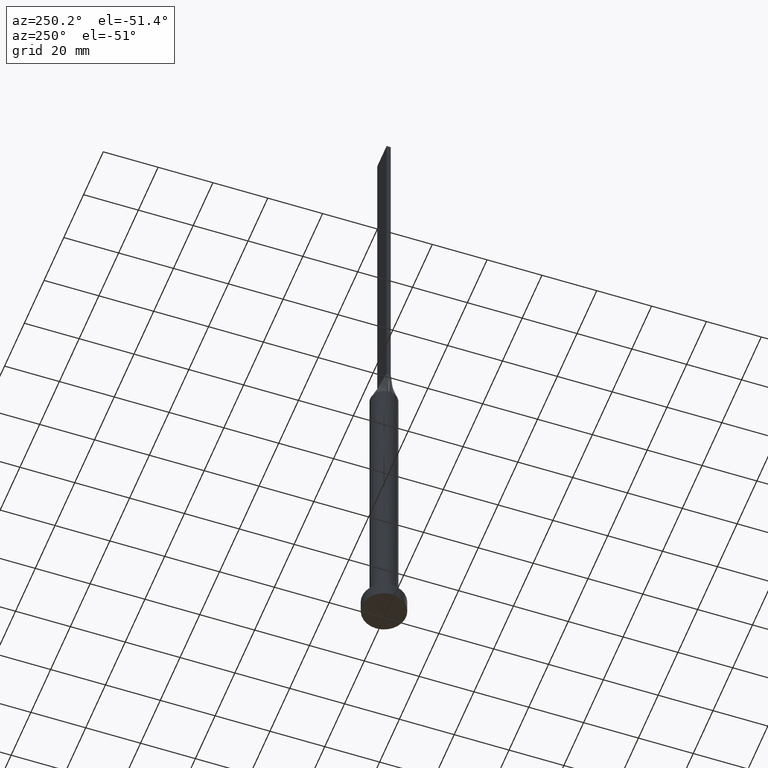
[diagram: clean part render]
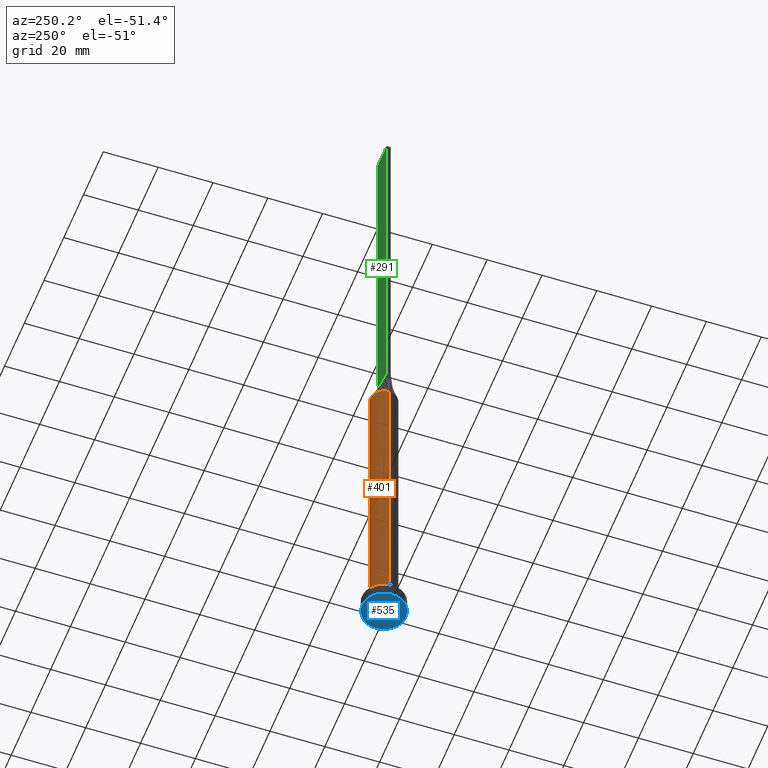
[diagram: same view with three faces highlighted in distinct colors, each labeled with its STEP entity id]
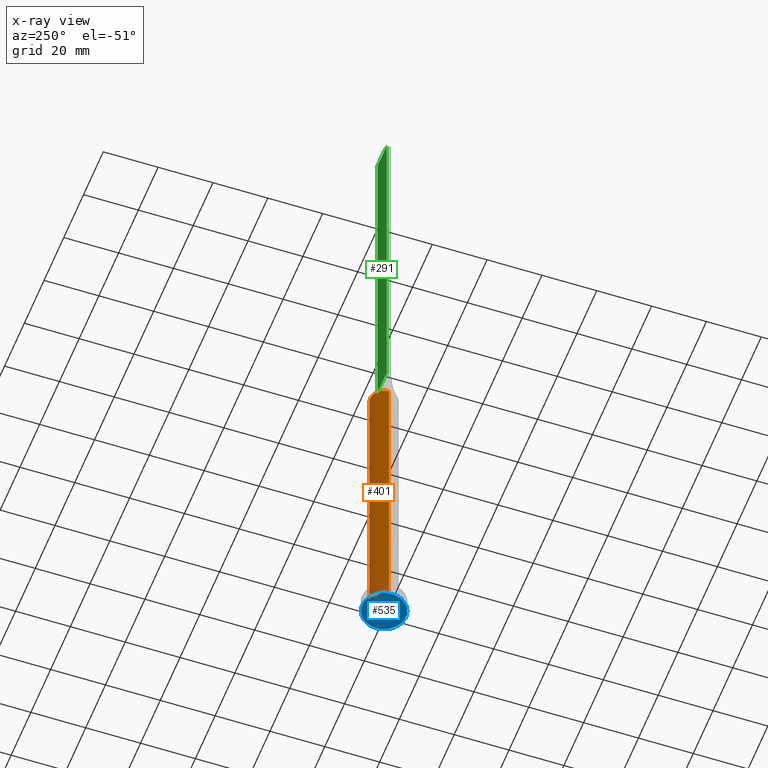
[diagram: x-ray of the same camera — body ghosted, the three highlighted faces saturated]
A machine part, auxiliary view with three faces highlighted in distinct colors.
The next image is the same camera in x-ray (body ghosted, the three faces saturated) — at least one of them is partly hidden behind the body in this view.
Their STEP definitions:

[orange] entity #401 — the highlighted cylindrical surface (edge-blend (fillet) strip) has radius 5 mm, axis along (-0, -0, -1).
#2 = LINE ( 'NONE', #451, #165 ) ;
#3 = CARTESIAN_POINT ( 'NONE',  ( -5.000000000000000000, 0.000000000000000000, 115.0000000000000000 ) ) ;
#4 = CARTESIAN_POINT ( 'NONE',  ( 5.000000000000000000, 6.123233995736766282E-16, 5.000000000000000000 ) ) ;
#7 = ORIENTED_EDGE ( 'NONE', *, *, #380, .F. ) ;
#16 = DIRECTION ( 'NONE',  ( -0.000000000000000000, -0.000000000000000000, -1.000000000000000000 ) ) ;
#24 = CIRCLE ( 'NONE', #135, 5.000000000000000000 ) ;
#32 = VERTEX_POINT ( 'NONE', #182 ) ;
#42 = EDGE_LOOP ( 'NONE', ( #419, #236, #435, #7, #238, #52 ) ) ;
#48 = FACE_OUTER_BOUND ( 'NONE', #42, .T. ) ;
#52 = ORIENTED_EDGE ( 'NONE', *, *, #576, .F. ) ;
#53 = CARTESIAN_POINT ( 'NONE',  ( 4.938814826645345768, 0.7798128673650538412, 115.0000000000000000 ) ) ;
#55 = CARTESIAN_POINT ( 'NONE',  ( 2.353781608410062454, 4.424438117685770777, 115.0000000000000000 ) ) ;
#57 = DIRECTION ( 'NONE',  ( -1.000000000000000000, 0.000000000000000000, 0.000000000000000000 ) ) ;
#64 = DIRECTION ( 'NONE',  ( 1.000000000000000000, 0.000000000000000000, 0.000000000000000000 ) ) ;
#74 = CARTESIAN_POINT ( 'NONE',  ( -4.029217956433124748, 3.021257902548482033, 115.0000000000000000 ) ) ;
#75 = CARTESIAN_POINT ( 'NONE',  ( -4.332026455536841070, 2.547220758687717801, 115.0000000000000000 ) ) ;
#88 = CIRCLE ( 'NONE', #571, 5.000000000000000000 ) ;
#91 = CARTESIAN_POINT ( 'NONE',  ( -5.000000000000000000, 0.000000000000000000, 5.000000000000000000 ) ) ;
#112 = CARTESIAN_POINT ( 'NONE',  ( 0.000000000000000000, 0.000000000000000000, 115.0000000000000000 ) ) ;
#114 = CARTESIAN_POINT ( 'NONE',  ( -3.404830936252120299, 3.673931880027067720, 115.0000000000000142 ) ) ;
#118 = VERTEX_POINT ( 'NONE', #392 ) ;
#134 = VERTEX_POINT ( 'NONE', #91 ) ;
#135 = AXIS2_PLACEMENT_3D ( 'NONE', #112, #466, #581 ) ;
#153 = CARTESIAN_POINT ( 'NONE',  ( 0.7119876437238013001, 4.961551549233180758, 115.0000000000000426 ) ) ;
#157 = VERTEX_POINT ( 'NONE', #4 ) ;
#158 = CARTESIAN_POINT ( 'NONE',  ( 4.332026455536839293, 2.547220758687718689, 115.0000000000000142 ) ) ;
#165 = VECTOR ( 'NONE', #479, 1000.000000000000000 ) ;
#173 = CARTESIAN_POINT ( 'NONE',  ( -4.753727492665067444, 1.629988260829202007, 115.0000000000000426 ) ) ;
#182 = CARTESIAN_POINT ( 'NONE',  ( -4.999812818728077701, -1.193032336741890821E-15, 115.0000000000000000 ) ) ;
#191 = VECTOR ( 'NONE', #16, 1000.000000000000000 ) ;
#197 = B_SPLINE_CURVE_WITH_KNOTS ( 'NONE', 3,
 ( #577, #590, #394, #158, #354, #347, #498, #537, #55, #206, #587, #153, #350, #543, #272, #225, #363, #424, #517, #371, #114, #74, #75, #173, #322, #275 ),
 .UNSPECIFIED., .F., .F.,
 ( 4, 2, 2, 2, 2, 2, 2, 2, 2, 2, 2, 2, 4 ),
 ( 0.000000000000000000, 0.1250000000000001388, 0.2500000000000002220, 0.3125000000000002776, 0.3750000000000002776, 0.4375000000000002776, 0.5000000000000002220, 0.5625000000000002220, 0.6250000000000001110, 0.6875000000000001110, 0.7500000000000001110, 0.8750000000000001110, 1.000000000000000000 ),
 .UNSPECIFIED. ) ;
#206 = CARTESIAN_POINT ( 'NONE',  ( 1.732223102076450250, 4.702695359254404295, 114.9999999999999716 ) ) ;
#210 = CYLINDRICAL_SURFACE ( 'NONE', #480, 5.000000000000000000 ) ;
#225 = CARTESIAN_POINT ( 'NONE',  ( -1.400150253878312823, 4.812847332616943419, 115.0000000000000000 ) ) ;
#236 = ORIENTED_EDGE ( 'NONE', *, *, #539, .T. ) ;
#238 = ORIENTED_EDGE ( 'NONE', *, *, #457, .F. ) ;
#243 = DIRECTION ( 'NONE',  ( 1.000000000000000000, 0.000000000000000000, 0.000000000000000000 ) ) ;
#272 = CARTESIAN_POINT ( 'NONE',  ( -0.7119876437238006339, 4.961551549233178982, 115.0000000000000142 ) ) ;
#275 = CARTESIAN_POINT ( 'NONE',  ( -4.938831943662458812, 0.7798155886440081286, 115.0000000000000000 ) ) ;
#279 = EDGE_CURVE ( 'NONE', #157, #134, #519, .T. ) ;
#301 = CARTESIAN_POINT ( 'NONE',  ( 0.000000000000000000, 0.000000000000000000, 5.000000000000000000 ) ) ;
#322 = CARTESIAN_POINT ( 'NONE',  ( -4.874625637456156291, 1.186344398896586716, 115.0000000000000142 ) ) ;
#347 = CARTESIAN_POINT ( 'NONE',  ( 3.404830936252119411, 3.673931880027066388, 115.0000000000000142 ) ) ;
#350 = CARTESIAN_POINT ( 'NONE',  ( 0.3560391241594590972, 5.000000000000001776, 115.0000000000000284 ) ) ;
#354 = CARTESIAN_POINT ( 'NONE',  ( 4.029217956433126524, 3.021257902548482477, 115.0000000000000142 ) ) ;
#363 = CARTESIAN_POINT ( 'NONE',  ( -1.732223102076449806, 4.702695359254402518, 114.9999999999999858 ) ) ;
#370 = VERTEX_POINT ( 'NONE', #53 ) ;
#371 = CARTESIAN_POINT ( 'NONE',  ( -3.168723755431092748, 3.881165404529570484, 114.9999999999999289 ) ) ;
#380 = EDGE_CURVE ( 'NONE', #32, #134, #495, .T. ) ;
#381 = VERTEX_POINT ( 'NONE', #453 ) ;
#391 = CARTESIAN_POINT ( 'NONE',  ( 0.000000000000000000, 0.000000000000000000, 115.0000000000000000 ) ) ;
#392 = CARTESIAN_POINT ( 'NONE',  ( -4.938831943662458812, 0.7798155886440081286, 115.0000000000000000 ) ) ;
#394 = CARTESIAN_POINT ( 'NONE',  ( 4.753727492665065668, 1.629988260829201563, 115.0000000000000000 ) ) ;
#401 = ADVANCED_FACE ( 'NONE', ( #48 ), #210, .T. ) ;
#405 = DIRECTION ( 'NONE',  ( -0.000000000000000000, -0.000000000000000000, -1.000000000000000000 ) ) ;
#419 = ORIENTED_EDGE ( 'NONE', *, *, #472, .F. ) ;
#424 = CARTESIAN_POINT ( 'NONE',  ( -2.353781608410062010, 4.424438117685770777, 114.9999999999999858 ) ) ;
#430 = AXIS2_PLACEMENT_3D ( 'NONE', #301, #491, #243 ) ;
#435 = ORIENTED_EDGE ( 'NONE', *, *, #279, .T. ) ;
#451 = CARTESIAN_POINT ( 'NONE',  ( 5.000000000000000000, 6.123233995736766282E-16, 115.0000000000000000 ) ) ;
#453 = CARTESIAN_POINT ( 'NONE',  ( 4.999812818728077701, 1.241126956226958231E-15, 115.0000000000000000 ) ) ;
#457 = EDGE_CURVE ( 'NONE', #118, #32, #24, .T. ) ;
#466 = DIRECTION ( 'NONE',  ( 0.000000000000000000, 0.000000000000000000, 1.000000000000000000 ) ) ;
#472 = EDGE_CURVE ( 'NONE', #381, #370, #88, .T. ) ;
#479 = DIRECTION ( 'NONE',  ( -0.000000000000000000, -0.000000000000000000, -1.000000000000000000 ) ) ;
#480 = AXIS2_PLACEMENT_3D ( 'NONE', #391, #405, #57 ) ;
#491 = DIRECTION ( 'NONE',  ( 0.000000000000000000, 0.000000000000000000, 1.000000000000000000 ) ) ;
#495 = LINE ( 'NONE', #3, #191 ) ;
#498 = CARTESIAN_POINT ( 'NONE',  ( 3.168723755431093192, 3.881165404529570040, 114.9999999999999432 ) ) ;
#517 = CARTESIAN_POINT ( 'NONE',  ( -2.643217737595827455, 4.256483892511438327, 114.9999999999999858 ) ) ;
#519 = CIRCLE ( 'NONE', #430, 5.000000000000000000 ) ;
#533 = CARTESIAN_POINT ( 'NONE',  ( 0.000000000000000000, 0.000000000000000000, 115.0000000000000000 ) ) ;
#537 = CARTESIAN_POINT ( 'NONE',  ( 2.643217737595826566, 4.256483892511437439, 114.9999999999999432 ) ) ;
#539 = EDGE_CURVE ( 'NONE', #381, #157, #2, .T. ) ;
#543 = CARTESIAN_POINT ( 'NONE',  ( -0.3560391241594593192, 5.000000000000000000, 115.0000000000000426 ) ) ;
#571 = AXIS2_PLACEMENT_3D ( 'NONE', #533, #593, #64 ) ;
#576 = EDGE_CURVE ( 'NONE', #370, #118, #197, .T. ) ;
#577 = CARTESIAN_POINT ( 'NONE',  ( 4.938814826645345768, 0.7798128673650538412, 115.0000000000000000 ) ) ;
#581 = DIRECTION ( 'NONE',  ( 1.000000000000000000, 0.000000000000000000, 0.000000000000000000 ) ) ;
#587 = CARTESIAN_POINT ( 'NONE',  ( 1.400150253878312823, 4.812847332616943419, 115.0000000000000000 ) ) ;
#590 = CARTESIAN_POINT ( 'NONE',  ( 4.874625637456157179, 1.186344398896585606, 115.0000000000000142 ) ) ;
#593 = DIRECTION ( 'NONE',  ( 0.000000000000000000, 0.000000000000000000, 1.000000000000000000 ) ) ;

[blue] entity #535 — the highlighted planar face has unit normal (0, 0, 1).
#6 = PLANE ( 'NONE',  #558 ) ;
#11 = CIRCLE ( 'NONE', #471, 8.000000000000000000 ) ;
#56 = VERTEX_POINT ( 'NONE', #427 ) ;
#93 = ORIENTED_EDGE ( 'NONE', *, *, #521, .F. ) ;
#94 = CARTESIAN_POINT ( 'NONE',  ( 0.000000000000000000, 0.000000000000000000, 0.000000000000000000 ) ) ;
#116 = AXIS2_PLACEMENT_3D ( 'NONE', #455, #250, #209 ) ;
#128 = EDGE_LOOP ( 'NONE', ( #249, #93 ) ) ;
#196 = DIRECTION ( 'NONE',  ( 0.000000000000000000, 0.000000000000000000, 1.000000000000000000 ) ) ;
#209 = DIRECTION ( 'NONE',  ( 1.000000000000000000, 0.000000000000000000, 0.000000000000000000 ) ) ;
#249 = ORIENTED_EDGE ( 'NONE', *, *, #413, .F. ) ;
#250 = DIRECTION ( 'NONE',  ( 0.000000000000000000, 0.000000000000000000, 1.000000000000000000 ) ) ;
#308 = CARTESIAN_POINT ( 'NONE',  ( 0.000000000000000000, 0.000000000000000000, 0.000000000000000000 ) ) ;
#360 = DIRECTION ( 'NONE',  ( 1.000000000000000000, 0.000000000000000000, -0.000000000000000000 ) ) ;
#390 = CARTESIAN_POINT ( 'NONE',  ( -8.000000000000000000, 0.000000000000000000, 0.000000000000000000 ) ) ;
#404 = FACE_OUTER_BOUND ( 'NONE', #128, .T. ) ;
#413 = EDGE_CURVE ( 'NONE', #542, #56, #11, .T. ) ;
#427 = CARTESIAN_POINT ( 'NONE',  ( 8.000000000000000000, 9.797174393178825657E-16, 0.000000000000000000 ) ) ;
#439 = DIRECTION ( 'NONE',  ( 0.000000000000000000, 0.000000000000000000, 1.000000000000000000 ) ) ;
#455 = CARTESIAN_POINT ( 'NONE',  ( 0.000000000000000000, 0.000000000000000000, 0.000000000000000000 ) ) ;
#471 = AXIS2_PLACEMENT_3D ( 'NONE', #94, #439, #620 ) ;
#521 = EDGE_CURVE ( 'NONE', #56, #542, #566, .T. ) ;
#535 = ADVANCED_FACE ( 'NONE', ( #404 ), #6, .F. ) ;
#542 = VERTEX_POINT ( 'NONE', #390 ) ;
#558 = AXIS2_PLACEMENT_3D ( 'NONE', #308, #196, #360 ) ;
#566 = CIRCLE ( 'NONE', #116, 8.000000000000000000 ) ;
#620 = DIRECTION ( 'NONE',  ( 1.000000000000000000, 0.000000000000000000, 0.000000000000000000 ) ) ;

[green] entity #291 — the highlighted planar face has unit normal (0, -1, 0).
#50 = DIRECTION ( 'NONE',  ( -1.000000000000000000, 0.000000000000000000, 0.000000000000000000 ) ) ;
#59 = EDGE_CURVE ( 'NONE', #584, #515, #524, .T. ) ;
#69 = VERTEX_POINT ( 'NONE', #133 ) ;
#79 = CARTESIAN_POINT ( 'NONE',  ( 4.750000000000000000, 0.7500000000000002220, 250.0000000000000000 ) ) ;
#98 = ORIENTED_EDGE ( 'NONE', *, *, #358, .F. ) ;
#100 = CARTESIAN_POINT ( 'NONE',  ( -4.750000000000000000, 0.7500000000000002220, 250.0000000000000000 ) ) ;
#123 = FACE_OUTER_BOUND ( 'NONE', #474, .T. ) ;
#129 = EDGE_CURVE ( 'NONE', #584, #389, #255, .T. ) ;
#133 = CARTESIAN_POINT ( 'NONE',  ( -4.750000000000000000, 0.7500000000000002220, 125.0000000000000000 ) ) ;
#160 = CARTESIAN_POINT ( 'NONE',  ( 4.750000000000000000, 0.7500000000000002220, 250.0000000000000000 ) ) ;
#168 = EDGE_CURVE ( 'NONE', #515, #69, #211, .T. ) ;
#184 = DIRECTION ( 'NONE',  ( 0.000000000000000000, -0.000000000000000000, -1.000000000000000000 ) ) ;
#186 = ORIENTED_EDGE ( 'NONE', *, *, #59, .T. ) ;
#211 = LINE ( 'NONE', #589, #385 ) ;
#217 = AXIS2_PLACEMENT_3D ( 'NONE', #596, #337, #184 ) ;
#242 = VECTOR ( 'NONE', #305, 1000.000000000000000 ) ;
#246 = CARTESIAN_POINT ( 'NONE',  ( -4.750000000000000000, 0.7500000000000002220, 250.0000000000000000 ) ) ;
#255 = LINE ( 'NONE', #160, #318 ) ;
#280 = DIRECTION ( 'NONE',  ( -0.000000000000000000, -0.000000000000000000, -1.000000000000000000 ) ) ;
#289 = LINE ( 'NONE', #100, #242 ) ;
#291 = ADVANCED_FACE ( 'NONE', ( #123 ), #410, .F. ) ;
#305 = DIRECTION ( 'NONE',  ( -0.000000000000000000, -0.000000000000000000, -1.000000000000000000 ) ) ;
#318 = VECTOR ( 'NONE', #50, 1000.000000000000000 ) ;
#337 = DIRECTION ( 'NONE',  ( 0.000000000000000000, -1.000000000000000000, 0.000000000000000000 ) ) ;
#358 = EDGE_CURVE ( 'NONE', #389, #69, #289, .T. ) ;
#385 = VECTOR ( 'NONE', #445, 1000.000000000000000 ) ;
#389 = VERTEX_POINT ( 'NONE', #246 ) ;
#397 = VECTOR ( 'NONE', #280, 1000.000000000000000 ) ;
#410 = PLANE ( 'NONE',  #217 ) ;
#445 = DIRECTION ( 'NONE',  ( -1.000000000000000000, -0.000000000000000000, -0.000000000000000000 ) ) ;
#474 = EDGE_LOOP ( 'NONE', ( #561, #98, #505, #186 ) ) ;
#488 = CARTESIAN_POINT ( 'NONE',  ( 4.750000000000000000, 0.7500000000000002220, 125.0000000000000000 ) ) ;
#505 = ORIENTED_EDGE ( 'NONE', *, *, #129, .F. ) ;
#515 = VERTEX_POINT ( 'NONE', #488 ) ;
#524 = LINE ( 'NONE', #79, #397 ) ;
#561 = ORIENTED_EDGE ( 'NONE', *, *, #168, .T. ) ;
#562 = CARTESIAN_POINT ( 'NONE',  ( 4.750000000000000000, 0.7500000000000002220, 250.0000000000000000 ) ) ;
#584 = VERTEX_POINT ( 'NONE', #562 ) ;
#589 = CARTESIAN_POINT ( 'NONE',  ( -4.750000000000000000, 0.7500000000000002220, 125.0000000000000000 ) ) ;
#596 = CARTESIAN_POINT ( 'NONE',  ( 4.750000000000000000, 0.7500000000000002220, 250.0000000000000000 ) ) ;